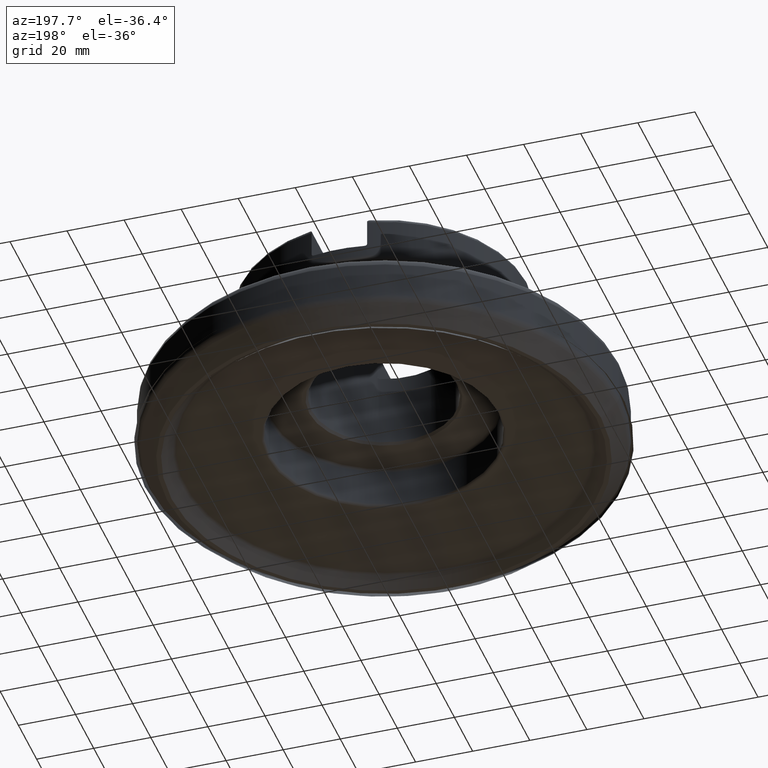
[diagram: clean part render]
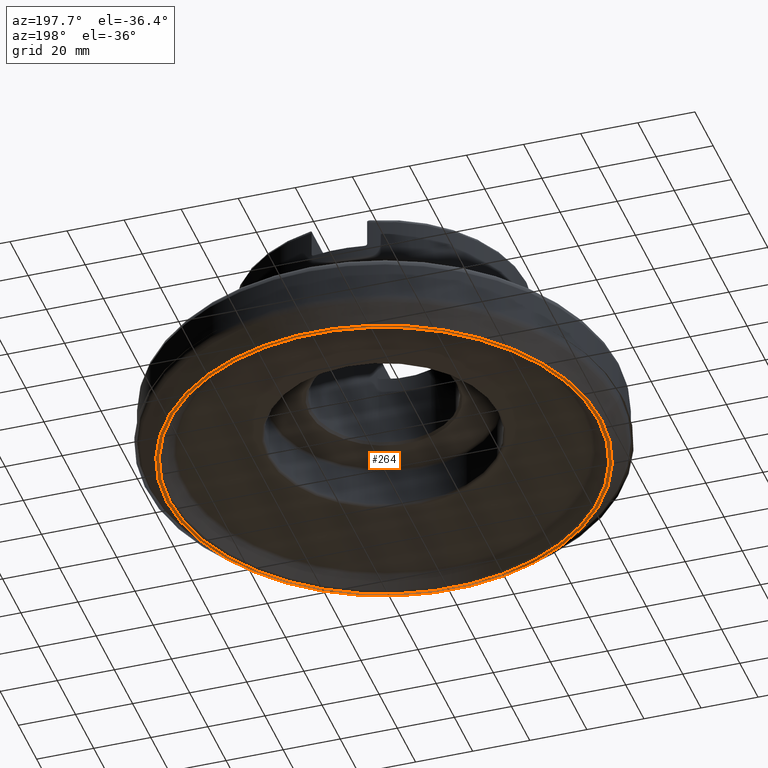
[diagram: same view with one face highlighted and labeled with its STEP entity id]
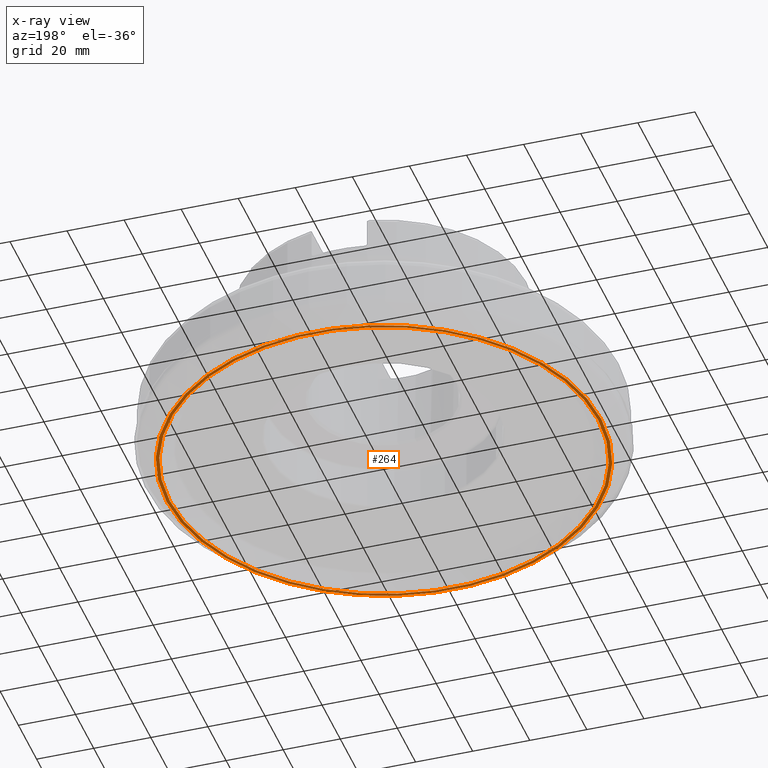
[diagram: x-ray of the same camera — body ghosted, the highlighted face saturated]
A machine part, auxiliary view. The second image highlights one B-rep face of the part: STEP entity #264.
The next image is the same camera in x-ray: the body ghosted, the highlighted face saturated — about 0% of this face is hidden behind the body in this view.
In plain terms, the highlighted face is a SurfaceOfRevolution surface.
Its self-contained STEP definition (entity closure, byte-faithful):
#123=SURFACE_OF_REVOLUTION('',#312,#145);
#145=AXIS1_PLACEMENT('',#2055,#1368);
#264=ADVANCED_FACE('',(#422,#423),#123,.F.);
#312=LINE('',#2054,#348);
#348=VECTOR('',#1367,0.59139201961581);
#422=FACE_BOUND('',#528,.T.);
#423=FACE_BOUND('',#529,.T.);
#528=EDGE_LOOP('',(#732));
#529=EDGE_LOOP('',(#733));
#732=ORIENTED_EDGE('',*,*,#925,.T.);
#733=ORIENTED_EDGE('',*,*,#926,.F.);
#823=VERTEX_POINT('',#2043);
#824=VERTEX_POINT('',#2053);
#925=EDGE_CURVE('',#823,#823,#979,.T.);
#926=EDGE_CURVE('',#824,#824,#980,.T.);
#979=CIRCLE('',#1129,75.0236731226022);
#980=CIRCLE('',#1130,76.2);
#1129=AXIS2_PLACEMENT_3D('',#2042,#1362,#1363);
#1130=AXIS2_PLACEMENT_3D('',#2052,#1365,#1366);
#1362=DIRECTION('',(0.,0.,-1.));
#1363=DIRECTION('',(-1.,0.,0.));
#1365=DIRECTION('',(0.,0.,-1.));
#1366=DIRECTION('',(-1.,0.,0.));
#1367=DIRECTION('',(0.00153861661213337,0.999989881184751,0.00422731439903635));
#1368=DIRECTION('',(0.,0.,-1.));
#2042=CARTESIAN_POINT('',(0.,0.,0.00500000000003722));
#2043=CARTESIAN_POINT('',(-75.0236731226022,0.,0.00500000000003722));
#2052=CARTESIAN_POINT('',(0.,0.,3.83807569059869E-14));
#2053=CARTESIAN_POINT('',(-76.2,0.,3.83807569059869E-14));
#2054=CARTESIAN_POINT('',(-7.99909007441433,-75.1875028453138,0.00250000000003477));
#2055=CARTESIAN_POINT('',(0.,0.,0.));